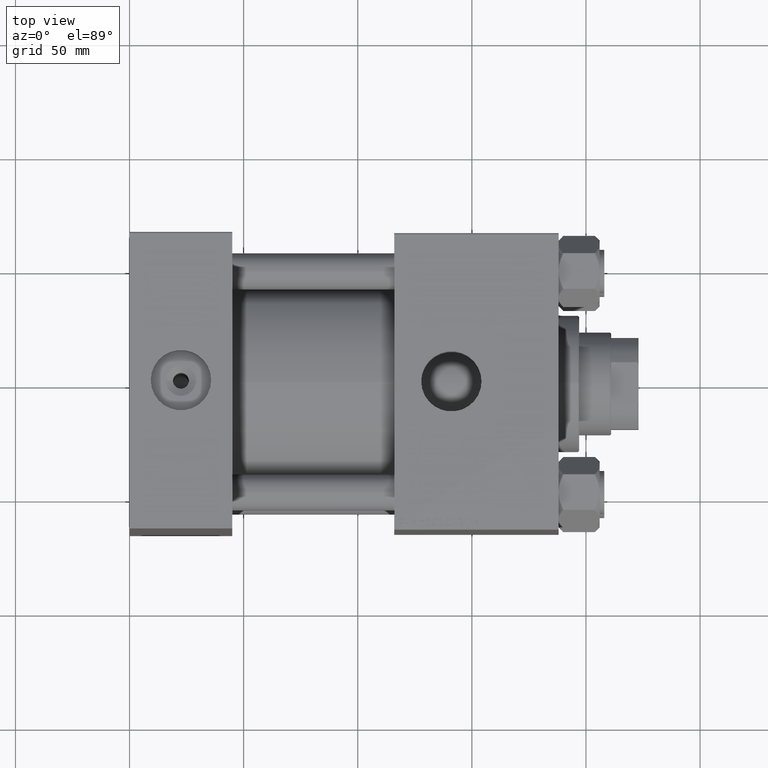
[diagram: clean part render]
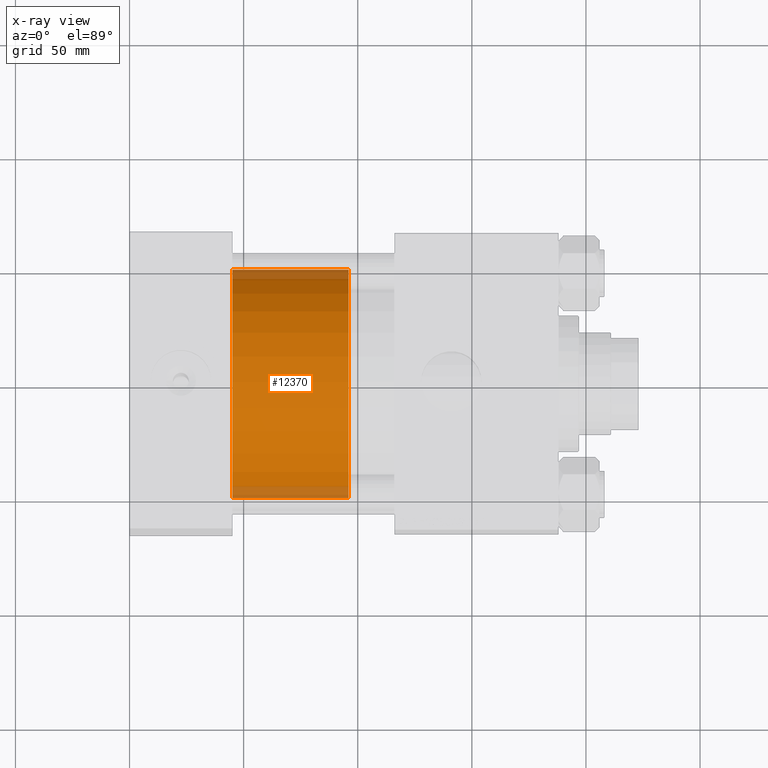
[diagram: x-ray — body ghosted, one internal face saturated and labeled with its STEP entity id]
A machine part, top view, then the same camera in x-ray: the body is ghosted and one INTERNAL B-rep face — a face not visible from any outside direction — is saturated and labeled: STEP entity #12370.
In plain terms, the highlighted cylindrical surface (partial cylindrical patch) has radius 50 mm, axis along (-1, 0, 0).
Its self-contained STEP definition (entity closure, byte-faithful):
#976 = EDGE_LOOP ( 'NONE', ( #47804, #46266, #10444, #26410 ) ) ;
#3250 = EDGE_CURVE ( 'NONE', #6123, #10326, #6640, .T. ) ;
#5472 = EDGE_CURVE ( 'NONE', #48265, #50168, #19745, .T. ) ;
#6123 = VERTEX_POINT ( 'NONE', #9645 ) ;
#6640 = CIRCLE ( 'NONE', #8297, 50.00000000000000000 ) ;
#8297 = AXIS2_PLACEMENT_3D ( 'NONE', #10742, #31556, #25795 ) ;
#8414 = CARTESIAN_POINT ( 'NONE',  ( 50.00000000000000000, 6.123233995736766085E-15, 51.00000000000000000 ) ) ;
#9645 = CARTESIAN_POINT ( 'NONE',  ( -50.00000000000000000, 0.000000000000000000, 51.00000000000000000 ) ) ;
#10005 = AXIS2_PLACEMENT_3D ( 'NONE', #13210, #24928, #40510 ) ;
#10326 = VERTEX_POINT ( 'NONE', #11516 ) ;
#10444 = ORIENTED_EDGE ( 'NONE', *, *, #18913, .T. ) ;
#10742 = CARTESIAN_POINT ( 'NONE',  ( 0.000000000000000000, 0.000000000000000000, 51.00000000000000000 ) ) ;
#11516 = CARTESIAN_POINT ( 'NONE',  ( 50.00000000000000000, 6.123233995736766085E-15, 51.00000000000000000 ) ) ;
#12370 = ADVANCED_FACE ( 'NONE', ( #15486 ), #31031, .T. ) ;
#13210 = CARTESIAN_POINT ( 'NONE',  ( 0.000000000000000000, 0.000000000000000000, 0.000000000000000000 ) ) ;
#15486 = FACE_OUTER_BOUND ( 'NONE', #976, .T. ) ;
#15978 = DIRECTION ( 'NONE',  ( -0.000000000000000000, -0.000000000000000000, -1.000000000000000000 ) ) ;
#16885 = LINE ( 'NONE', #25031, #30665 ) ;
#18523 = EDGE_CURVE ( 'NONE', #10326, #50168, #31867, .T. ) ;
#18913 = EDGE_CURVE ( 'NONE', #6123, #48265, #16885, .T. ) ;
#19745 = CIRCLE ( 'NONE', #10005, 50.00000000000000000 ) ;
#19796 = DIRECTION ( 'NONE',  ( -1.000000000000000000, 0.000000000000000000, 0.000000000000000000 ) ) ;
#20628 = DIRECTION ( 'NONE',  ( -0.000000000000000000, -0.000000000000000000, -1.000000000000000000 ) ) ;
#22432 = AXIS2_PLACEMENT_3D ( 'NONE', #30536, #15978, #19796 ) ;
#24928 = DIRECTION ( 'NONE',  ( 0.000000000000000000, 0.000000000000000000, 1.000000000000000000 ) ) ;
#25031 = CARTESIAN_POINT ( 'NONE',  ( -50.00000000000000000, 0.000000000000000000, 51.00000000000000000 ) ) ;
#25795 = DIRECTION ( 'NONE',  ( 1.000000000000000000, 0.000000000000000000, 0.000000000000000000 ) ) ;
#26410 = ORIENTED_EDGE ( 'NONE', *, *, #5472, .T. ) ;
#29804 = CARTESIAN_POINT ( 'NONE',  ( -50.00000000000000000, 0.000000000000000000, 0.000000000000000000 ) ) ;
#30536 = CARTESIAN_POINT ( 'NONE',  ( 0.000000000000000000, 0.000000000000000000, 51.00000000000000000 ) ) ;
#30665 = VECTOR ( 'NONE', #48007, 1000.000000000000000 ) ;
#31031 = CYLINDRICAL_SURFACE ( 'NONE', #22432, 50.00000000000000000 ) ;
#31556 = DIRECTION ( 'NONE',  ( 0.000000000000000000, 0.000000000000000000, 1.000000000000000000 ) ) ;
#31867 = LINE ( 'NONE', #8414, #48601 ) ;
#40510 = DIRECTION ( 'NONE',  ( 1.000000000000000000, 0.000000000000000000, 0.000000000000000000 ) ) ;
#46266 = ORIENTED_EDGE ( 'NONE', *, *, #3250, .F. ) ;
#46667 = CARTESIAN_POINT ( 'NONE',  ( 50.00000000000000000, 6.123233995736766085E-15, 0.000000000000000000 ) ) ;
#47804 = ORIENTED_EDGE ( 'NONE', *, *, #18523, .F. ) ;
#48007 = DIRECTION ( 'NONE',  ( -0.000000000000000000, -0.000000000000000000, -1.000000000000000000 ) ) ;
#48265 = VERTEX_POINT ( 'NONE', #29804 ) ;
#48601 = VECTOR ( 'NONE', #20628, 1000.000000000000000 ) ;
#50168 = VERTEX_POINT ( 'NONE', #46667 ) ;